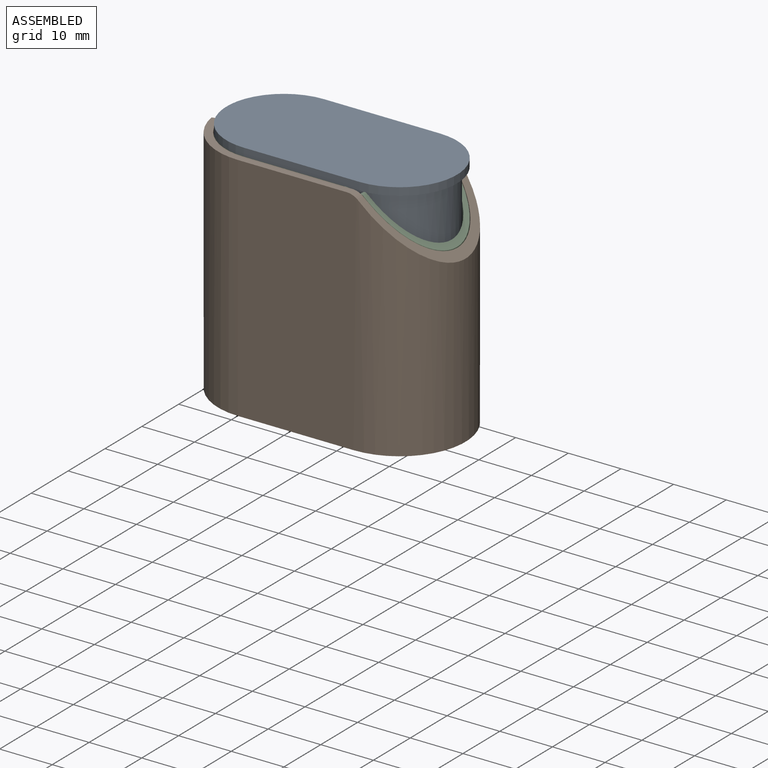
[diagram: assembled view]
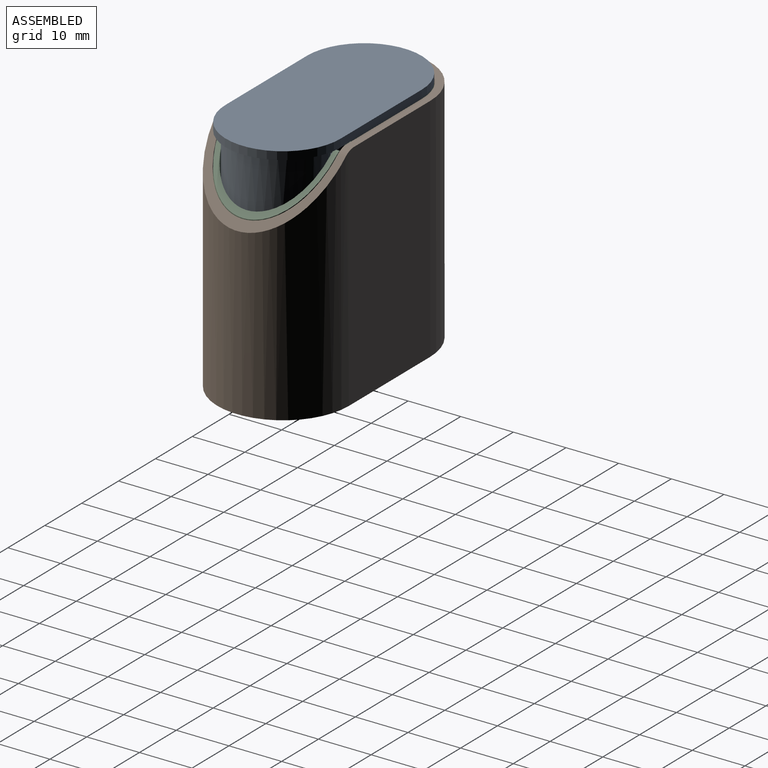
[diagram: assembled view, second angle]
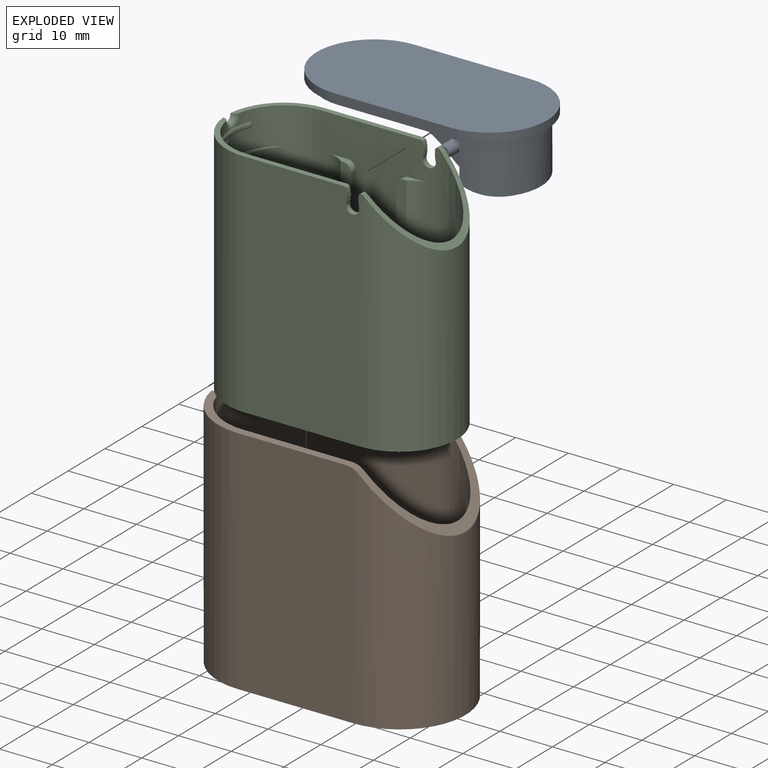
[diagram: exploded view]
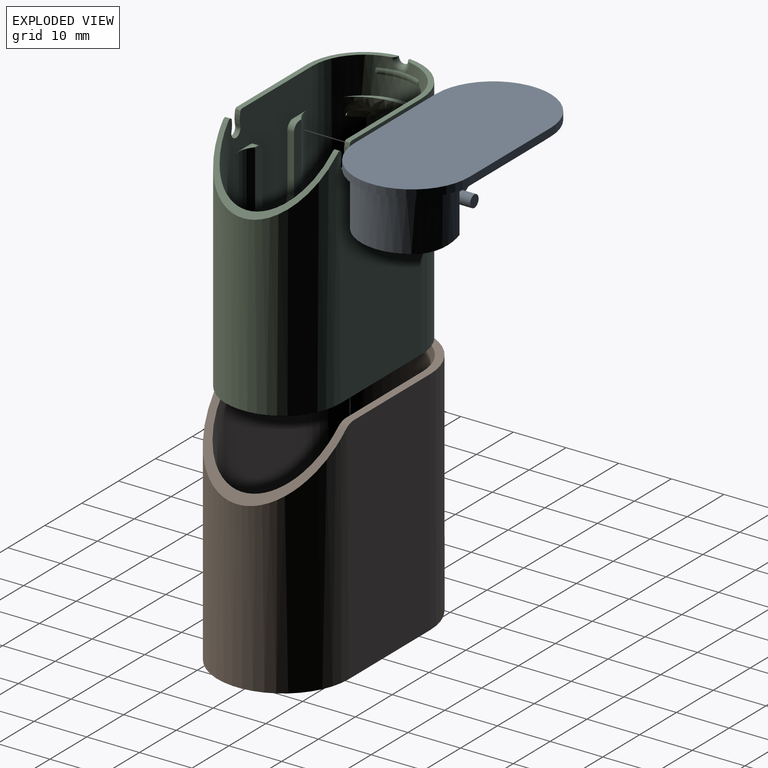
[diagram: exploded view, second angle]
ASSEMBLY  parts=3 mates=2
PART A: 23 faces, bbox 43.8x21.8x11.7 mm
  f0: plane 22x1mm, normal (0,-1,0), area 22mm2, adj f1,f3,f4,f5
  f1: cylinder r=9.7mm len=19.4mm, axis (0,0,1), area 284.2mm2, adj f0,f2,f4,f5,f13,f14,f15,f18
  f2: plane 22x1mm, normal (0,1,0), area 22mm2, adj f1,f3,f4,f5
  f3: cylinder r=9.7mm len=19.4mm, axis (0,0,1), area 30.5mm2, adj f0,f2,f4,f5
  f4: plane 32.63x19.4mm, normal (0,0,-1), area 392.2mm2, adj f0,f1,f2,f3,f11,f12,f13,f14
  f5: plane 43.8x21.8mm, normal (0,0,-1), area 130.5mm2, adj f0,f1,f2,f3,f6,f7,f8,f9
  f6: plane 22x1.5mm, normal (0,1,0), area 33mm2, adj f5,f7,f9,f10
  f7: cylinder r=10.9mm len=21.8mm, axis (0,0,-1), area 51.4mm2, adj f5,f6,f8,f10
  f8: plane 22x1.5mm, normal (0,-1,0), area 33mm2, adj f5,f7,f9,f10
  f9: cylinder r=10.9mm len=21.8mm, axis (0,0,-1), area 51.4mm2, adj f5,f6,f8,f10
  f10: plane 43.8x21.8mm, normal (0,0,1), area 852.9mm2, adj f6,f7,f8,f9
  f11: plane 14.96x7.45mm, normal (0,-1,0), area 35.8mm2, adj f4,f13,f16,f17,f18,f22
  f12: plane 14.96x7.45mm, normal (0,1,0), area 35.8mm2, adj f4,f14,f16,f17,f18,f20
  f13: plane 7.45x2.96mm, normal (-1,0,0), area 22mm2, adj f1,f4,f11,f18
  f14: plane 7.45x2.96mm, normal (-1,0,0), area 22mm2, adj f1,f4,f12,f18
  f15: plane 10.91x1.68mm, normal (0,0,-1), area 12.4mm2, adj f1,f18
  f16: plane 13.4x0.05mm, normal (-0.71,0,-0.71), area 0.9mm2, adj f11,f12,f17,f18
  f17: cylinder r=15.56mm len=13.4mm, axis (0,1,0), area 163.7mm2, adj f4,f11,f12,f16
  f18: cylinder r=15.56mm len=19.31mm, axis (0,1,0), area 187.4mm2, adj f1,f11,f12,f13,f14,f15,f16
  f19: plane 2.3x2.3mm, normal (0,1,0), area 4.2mm2, adj f20
  f20: cylinder r=1.15mm len=4.2mm, axis (0,1,0), area 30.3mm2, adj f12,f19
  f21: plane 2.3x2.3mm, normal (0,-1,0), area 4.2mm2, adj f22
  f22: cylinder r=1.15mm len=4.2mm, axis (0,1,0), area 30.3mm2, adj f11,f21
PART B: 15 faces, bbox 47x25x43.9 mm
  f0: plane 33.03x11.73mm, normal (0,0,1), area 56.3mm2, adj f1,f2,f7,f8,f13,f14
  f1: plane 43.94x22mm, normal (0,1,0), area 966.6mm2, adj f0,f2,f4,f6,f13
  f2: cylinder r=12.5mm len=43.94mm, axis (0,0,-1), area 1719.3mm2, adj f0,f1,f3,f5,f6,f14
  f3: plane 43.94x22mm, normal (0,-1,0), area 966.6mm2, adj f2,f4,f5,f6,f12
  f4: cylinder r=12.5mm len=43.66mm, axis (0,0,-1), area 1412.9mm2, adj f1,f3,f6,f11,f12,f13
  f5: plane 33.03x11.73mm, normal (0,0,1), area 56.3mm2, adj f2,f3,f8,f9,f12,f14
  f6: plane 47x25mm, normal (0,0,-1), area 176.7mm2, adj f1,f2,f3,f4,f7,f8,f9,f10
  f7: plane 43.94x22mm, normal (0,-1,0), area 966.6mm2, adj f0,f6,f8,f10,f13
  f8: cylinder r=11mm len=43.94mm, axis (0,0,-1), area 1517.5mm2, adj f0,f5,f6,f7,f9,f14
  f9: plane 43.94x22mm, normal (0,1,0), area 966.6mm2, adj f5,f6,f8,f10,f12
  f10: cylinder r=11mm len=43.66mm, axis (0,0,-1), area 1276.3mm2, adj f6,f7,f9,f11,f12,f13
  f11: plane 24.93x11.57mm, normal (0.71,0,0.71), area 74.4mm2, adj f4,f10,f12,f13
  f12: cylinder r=3.17mm len=2.25mm, axis (0,1,0), area 3.7mm2, adj f3,f4,f5,f9,f10,f11
  f13: cylinder r=3.17mm len=2.25mm, axis (0,1,0), area 3.7mm2, adj f0,f1,f4,f7,f10,f11
  f14: torus R=0.44mm, axis (-1,0,0), area 9.8mm2, adj f0,f2,f5,f8
PART C: 63 faces, bbox 44.4x22.4x44.8 mm
  f0: cylinder r=9.9mm len=43.94mm, axis (0,0,1), area 1282.1mm2, adj f1,f2,f4,f5,f6,f9,f27,f54
  f1: cylinder r=11.95mm len=4.04mm, axis (0,0,1), area 5.1mm2, adj f0,f55,f57
  f2: plane 43.94x22mm, normal (0,-1,0), area 658.6mm2, adj f0,f5,f9,f11,f19,f20,f21,f22
  f3: extruded ~1.13x1.02mm, area 0.1mm2, adj f4,f10,f27
  f4: plane 29.87x9.9mm, normal (0,0,1), area 34.2mm2, adj f0,f3,f6,f8,f10,f25,f27
  f5: plane 29.87x9.9mm, normal (0,0,1), area 34.2mm2, adj f0,f2,f7,f10,f22,f26,f27
  f6: plane 43.94x22mm, normal (0,1,0), area 658.6mm2, adj f0,f4,f9,f11,f16,f17,f18,f24
  f7: plane 43.94x22mm, normal (0,1,0), area 957mm2, adj f5,f9,f10,f12,f19,f20,f21,f22
  f8: plane 43.94x22mm, normal (0,-1,0), area 957mm2, adj f4,f9,f10,f12,f16,f17,f18,f24
  f9: plane 43.8x21.8mm, normal (0,0,-1), area 109.3mm2, adj f0,f2,f6,f7,f8,f10,f11,f12
  f10: cylinder r=10.9mm len=43.94mm, axis (0,0,1), area 1503.6mm2, adj f3,f4,f5,f7,f8,f9,f26
  f11: cylinder r=9.9mm len=43.32mm, axis (0,0,1), area 1170.3mm2, adj f2,f6,f9,f13,f14,f15,f23,f24
  f12: cylinder r=10.9mm len=43.32mm, axis (0,0,1), area 1266.7mm2, adj f7,f8,f9,f13,f14,f15,f23,f24
  f13: plane 21.72x9.97mm, normal (0.71,0,0.71), area 43.6mm2, adj f11,f12,f14,f15
  f14: cylinder r=3.17mm len=1.03mm, axis (0,1,0), area 0.5mm2, adj f11,f12,f13,f24
  f15: cylinder r=3.17mm len=1.03mm, axis (0,1,0), area 0.5mm2, adj f11,f12,f13,f23
  f16: cylinder r=1.25mm len=2.5mm, axis (0,1,0), area 3.9mm2, adj f6,f8,f17,f18
  f17: cylinder r=5.42mm len=2.92mm, axis (0,1,0), area 3mm2, adj f6,f8,f16,f25
  f18: cylinder r=5.42mm len=2.22mm, axis (0,1,0), area 2.2mm2, adj f6,f8,f16,f24
  f19: cylinder r=5.42mm len=2.92mm, axis (0,1,0), area 3mm2, adj f2,f7,f20,f22
  f20: cylinder r=1.25mm len=2.5mm, axis (0,1,0), area 3.9mm2, adj f2,f7,f19,f21
  f21: cylinder r=5.42mm len=2.22mm, axis (0,1,0), area 2.2mm2, adj f2,f7,f20,f23
  f22: cylinder r=0.5mm len=1mm, axis (0,1,0), area 0.5mm2, adj f2,f5,f7,f19
  f23: cylinder r=0.5mm len=1.02mm, axis (0,1,0), area 1mm2, adj f2,f7,f11,f12,f15,f21
  f24: cylinder r=0.5mm len=1.02mm, axis (0,1,0), area 1mm2, adj f6,f8,f11,f12,f14,f18
  f25: cylinder r=0.5mm len=1mm, axis (0,1,0), area 0.5mm2, adj f4,f6,f8,f17
  f26: extruded ~1.13x1.02mm, area 0.1mm2, adj f5,f10,f27
  f27: bspline ~3.67x2.37mm, area 6.5mm2, adj f0,f3,f4,f5,f26
  f28: plane 3.86x1.27mm, normal (0,0,1), area 2mm2, adj f6,f29,f37,f40
  f29: cylinder r=1.5mm len=1.5mm, axis (0,-1,0), area 3mm2, adj f6,f28,f30,f37
  f30: plane 10.85x1.27mm, normal (1,0,0), area 13.8mm2, adj f6,f29,f31,f37
  f31: cylinder r=8.58mm len=4.5mm, axis (0,-1,0), area 5.8mm2, adj f6,f30,f32,f37
  f32: cylinder r=4.27mm len=8.53mm, axis (0,-1,0), area 17mm2, adj f6,f31,f33,f37
  f33: cylinder r=8.58mm len=4.5mm, axis (0,-1,0), area 5.8mm2, adj f6,f32,f34,f37
  f34: plane 10.85x1.27mm, normal (-1,0,0), area 13.8mm2, adj f6,f33,f35,f37
  f35: cylinder r=1.5mm len=1.5mm, axis (0,-1,0), area 3mm2, adj f6,f34,f36,f37
  f36: plane 3.86x1.27mm, normal (0,0,1), area 2mm2, adj f6,f35,f37,f38
  f37: plane 23.12x12.53mm, normal (0,1,0), area 101.3mm2, adj f28,f29,f30,f31,f32,f33,f34,f35
  f38: cylinder r=5.08mm len=16.85mm, axis (0,0,1), area 61.9mm2, adj f6,f36,f37,f39
  f39: torus R=9.63mm, axis (0,-1,0), area 90.8mm2, adj f6,f37,f38,f40
  f40: cylinder r=5.08mm len=16.85mm, axis (0,0,1), area 61.9mm2, adj f6,f28,f37,f39
  f41: plane 3.86x1.27mm, normal (0,0,1), area 2mm2, adj f2,f42,f50,f51
  f42: cylinder r=1.5mm len=1.5mm, axis (0,1,0), area 3mm2, adj f2,f41,f43,f50
  f43: plane 10.85x1.27mm, normal (-1,0,0), area 13.8mm2, adj f2,f42,f44,f50
  f44: cylinder r=8.58mm len=4.5mm, axis (0,1,0), area 5.8mm2, adj f2,f43,f45,f50
  f45: cylinder r=4.27mm len=8.53mm, axis (0,1,0), area 17mm2, adj f2,f44,f46,f50
  f46: cylinder r=8.58mm len=4.5mm, axis (0,1,0), area 5.8mm2, adj f2,f45,f47,f50
  f47: plane 10.85x1.27mm, normal (1,0,0), area 13.8mm2, adj f2,f46,f48,f50
  f48: cylinder r=1.5mm len=1.5mm, axis (0,1,0), area 3mm2, adj f2,f47,f49,f50
  f49: plane 3.86x1.27mm, normal (0,0,1), area 2mm2, adj f2,f48,f50,f53
  f50: plane 23.12x12.53mm, normal (0,-1,0), area 101.3mm2, adj f41,f42,f43,f44,f45,f46,f47,f48
  f51: cylinder r=5.08mm len=16.85mm, axis (0,0,1), area 61.9mm2, adj f2,f41,f50,f52
  f52: torus R=9.63mm, axis (0,-1,0), area 90.8mm2, adj f2,f50,f51,f53
  f53: cylinder r=5.08mm len=16.85mm, axis (0,0,1), area 61.9mm2, adj f2,f49,f50,f52
  f54: cylinder r=11.95mm len=4.04mm, axis (0,0,1), area 5.1mm2, adj f0,f55,f57
  f55: plane 16.6x4.66mm, normal (0,0,1), area 11.9mm2, adj f0,f1,f54,f57
  f56: bspline ~16.54x4.87mm, area 0mm2, adj f0,f57
  f57: bspline ~16.56x3.86mm, area 33.2mm2, adj f0,f1,f54,f55,f56
  f58: torus R=10.83mm, axis (0,0,-1), area 9mm2, adj f0,f61,f62
  f59: cylinder r=0.5mm len=0.78mm, axis (0,0,1), area 0.2mm2, adj f0,f62
  f60: cylinder r=0.5mm len=0.78mm, axis (0,0,1), area 0.2mm2, adj f0,f61
  f61: bspline ~1.45x0.7mm, area 0.4mm2, adj f0,f58,f60
  f62: bspline ~1.45x0.7mm, area 0.4mm2, adj f0,f58,f59
PLACE A rot(axis=(0,1,0),0deg) t=(0,0,21.97)mm
PLACE B t=(0,0,21.97)mm
PLACE C t=(0,0,21.97)mm
MATE revolute A.f20 <-> C.f14  axis (0,-1,0) through (9.68,-10.9,40.77)mm
MATE fastened C.f9 <-> B.f6  axis (0,0,-1) through (0,0,0)mm
